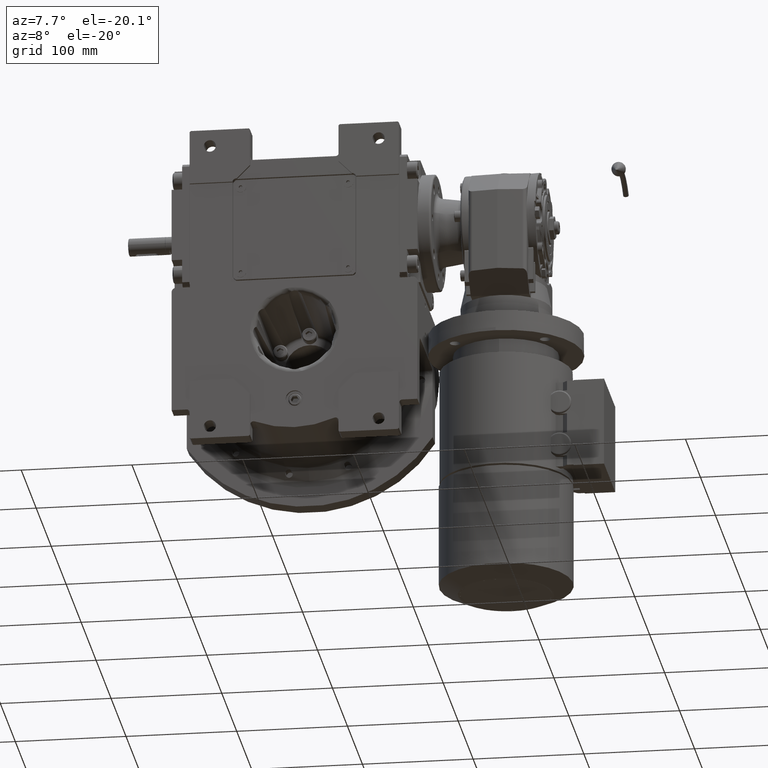
[diagram: clean part render]
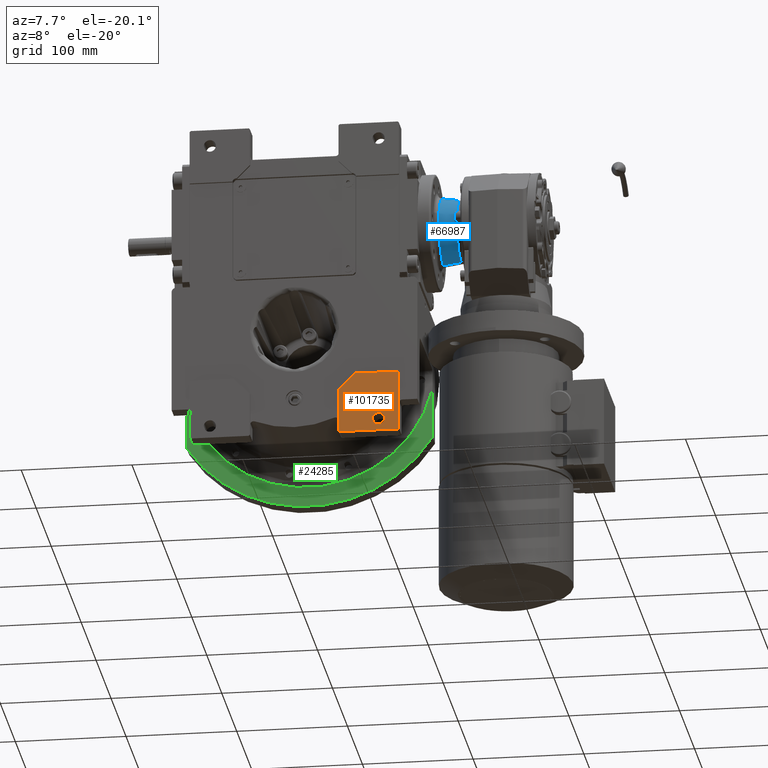
[diagram: same view with three faces highlighted in distinct colors, each labeled with its STEP entity id]
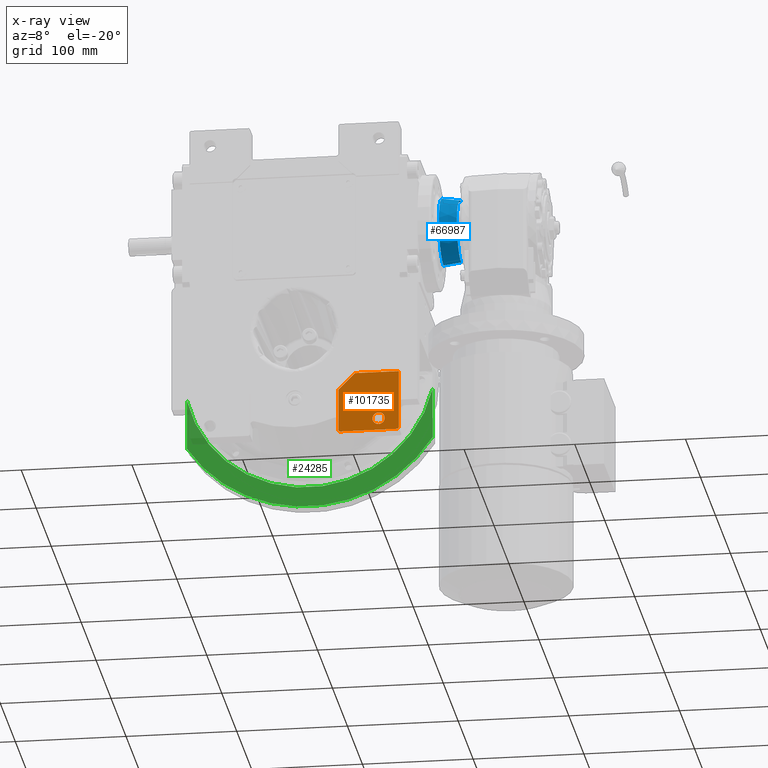
[diagram: x-ray of the same camera — body ghosted, the three highlighted faces saturated]
A machine part, auxiliary view with three faces highlighted in distinct colors.
The next image is the same camera in x-ray (body ghosted, the three faces saturated) — at least one of them is partly hidden behind the body in this view.
Their STEP definitions:

[orange] entity #101735 — the highlighted planar face has unit normal (0, -1, 0).
#803 = VECTOR ( 'NONE', #74310, 1000.000000000000000 ) ;
#1434 = DIRECTION ( 'NONE',  ( 0.7071067811865474617, 0.000000000000000000, -0.7071067811865474617 ) ) ;
#2591 = VECTOR ( 'NONE', #6963, 1000.000000000000114 ) ;
#2596 = CARTESIAN_POINT ( 'NONE',  ( 40.00000000000000000, -55.50000000000000000, -60.00000000000000000 ) ) ;
#3711 = EDGE_CURVE ( 'NONE', #21802, #85594, #95282, .T. ) ;
#5845 = CIRCLE ( 'NONE', #22397, 5.500000000000005329 ) ;
#6158 = VECTOR ( 'NONE', #40654, 1000.000000000000000 ) ;
#6963 = DIRECTION ( 'NONE',  ( 0.7071067811865474617, 0.000000000000000000, 0.7071067811865474617 ) ) ;
#8025 = CARTESIAN_POINT ( 'NONE',  ( 40.00000000000000000, -55.50000000000000000, -99.00000000000000000 ) ) ;
#8229 = CARTESIAN_POINT ( 'NONE',  ( 93.50000000000000000, -55.50000000000000000, -100.0000000000000000 ) ) ;
#9420 = DIRECTION ( 'NONE',  ( 0.000000000000000000, 0.000000000000000000, -1.000000000000000000 ) ) ;
#9503 = CARTESIAN_POINT ( 'NONE',  ( 55.00000000000000000, -55.50000000000000000, -45.00000000000000000 ) ) ;
#9619 = DIRECTION ( 'NONE',  ( -1.000000000000000000, 0.000000000000000000, 0.000000000000000000 ) ) ;
#10412 = VECTOR ( 'NONE', #75871, 1000.000000000000000 ) ;
#11625 = VERTEX_POINT ( 'NONE', #8229 ) ;
#12324 = VERTEX_POINT ( 'NONE', #36563 ) ;
#13561 = EDGE_CURVE ( 'NONE', #11625, #29840, #84812, .T. ) ;
#16043 = CARTESIAN_POINT ( 'NONE',  ( 70.70000000000000284, -55.50000000000000000, -89.00000000000000000 ) ) ;
#16067 = ORIENTED_EDGE ( 'NONE', *, *, #49621, .T. ) ;
#16834 = ORIENTED_EDGE ( 'NONE', *, *, #82723, .T. ) ;
#17418 = CARTESIAN_POINT ( 'NONE',  ( 94.50000000000000000, -55.50000000000000000, -99.00000000000000000 ) ) ;
#21549 = DIRECTION ( 'NONE',  ( 0.000000000000000000, 1.000000000000000000, 0.000000000000000000 ) ) ;
#21802 = VERTEX_POINT ( 'NONE', #9503 ) ;
#22397 = AXIS2_PLACEMENT_3D ( 'NONE', #48350, #55623, #72247 ) ;
#24570 = ORIENTED_EDGE ( 'NONE', *, *, #3711, .T. ) ;
#27296 = CARTESIAN_POINT ( 'NONE',  ( 76.20000000000000284, -55.50000000000000000, -89.00000000000000000 ) ) ;
#28891 = EDGE_CURVE ( 'NONE', #85594, #59592, #57119, .T. ) ;
#29840 = VERTEX_POINT ( 'NONE', #17418 ) ;
#33754 = CARTESIAN_POINT ( 'NONE',  ( 40.00000000000000000, -55.50000000000000000, -60.00000000000000000 ) ) ;
#34059 = CARTESIAN_POINT ( 'NONE',  ( 41.00000000000000000, -55.50000000000000000, -100.0000000000000000 ) ) ;
#36563 = CARTESIAN_POINT ( 'NONE',  ( 81.69999999999998863, -55.50000000000000000, -89.00000000000000000 ) ) ;
#38024 = VECTOR ( 'NONE', #1434, 1000.000000000000114 ) ;
#39496 = ORIENTED_EDGE ( 'NONE', *, *, #93076, .T. ) ;
#40600 = EDGE_CURVE ( 'NONE', #85008, #11625, #73794, .T. ) ;
#40654 = DIRECTION ( 'NONE',  ( 0.000000000000000000, 0.000000000000000000, 1.000000000000000000 ) ) ;
#42252 = FACE_BOUND ( 'NONE', #74588, .T. ) ;
#43259 = ORIENTED_EDGE ( 'NONE', *, *, #100037, .T. ) ;
#46985 = CARTESIAN_POINT ( 'NONE',  ( 94.50000000000000000, -55.50000000000000000, -45.00000000000000000 ) ) ;
#48350 = CARTESIAN_POINT ( 'NONE',  ( 76.20000000000000284, -55.50000000000000000, -89.00000000000000000 ) ) ;
#48371 = ORIENTED_EDGE ( 'NONE', *, *, #40600, .T. ) ;
#49621 = EDGE_CURVE ( 'NONE', #50586, #21802, #69113, .T. ) ;
#50586 = VERTEX_POINT ( 'NONE', #46985 ) ;
#52811 = ORIENTED_EDGE ( 'NONE', *, *, #28891, .T. ) ;
#52848 = VECTOR ( 'NONE', #9420, 1000.000000000000000 ) ;
#55041 = AXIS2_PLACEMENT_3D ( 'NONE', #27296, #21549, #76067 ) ;
#55623 = DIRECTION ( 'NONE',  ( 0.000000000000000000, 1.000000000000000000, 0.000000000000000000 ) ) ;
#55775 = DIRECTION ( 'NONE',  ( -0.7071067811865474617, 0.000000000000000000, -0.7071067811865474617 ) ) ;
#56917 = LINE ( 'NONE', #64205, #38024 ) ;
#57119 = LINE ( 'NONE', #33754, #52848 ) ;
#59592 = VERTEX_POINT ( 'NONE', #8025 ) ;
#61580 = AXIS2_PLACEMENT_3D ( 'NONE', #88463, #88983, #9619 ) ;
#62996 = LINE ( 'NONE', #78558, #6158 ) ;
#64205 = CARTESIAN_POINT ( 'NONE',  ( 40.00000000000000000, -55.50000000000000000, -99.00000000000000000 ) ) ;
#68012 = ORIENTED_EDGE ( 'NONE', *, *, #13561, .T. ) ;
#68698 = VECTOR ( 'NONE', #55775, 1000.000000000000114 ) ;
#69113 = LINE ( 'NONE', #99796, #10412 ) ;
#72247 = DIRECTION ( 'NONE',  ( 1.000000000000000000, 0.000000000000000000, 0.000000000000000000 ) ) ;
#73794 = LINE ( 'NONE', #91469, #803 ) ;
#73922 = FACE_OUTER_BOUND ( 'NONE', #77476, .T. ) ;
#74310 = DIRECTION ( 'NONE',  ( 1.000000000000000000, 0.000000000000000000, 0.000000000000000000 ) ) ;
#74588 = EDGE_LOOP ( 'NONE', ( #39496, #100883 ) ) ;
#75871 = DIRECTION ( 'NONE',  ( -1.000000000000000000, 0.000000000000000000, 0.000000000000000000 ) ) ;
#76067 = DIRECTION ( 'NONE',  ( -1.000000000000000000, 0.000000000000000000, 0.000000000000000000 ) ) ;
#77476 = EDGE_LOOP ( 'NONE', ( #48371, #68012, #16834, #16067, #24570, #52811, #43259 ) ) ;
#78558 = CARTESIAN_POINT ( 'NONE',  ( 94.50000000000000000, -55.50000000000000000, -99.00000000000000000 ) ) ;
#79660 = CARTESIAN_POINT ( 'NONE',  ( 55.00000000000000000, -55.50000000000000000, -45.00000000000000000 ) ) ;
#82723 = EDGE_CURVE ( 'NONE', #29840, #50586, #62996, .T. ) ;
#84812 = LINE ( 'NONE', #101436, #2591 ) ;
#85008 = VERTEX_POINT ( 'NONE', #34059 ) ;
#85594 = VERTEX_POINT ( 'NONE', #2596 ) ;
#88463 = CARTESIAN_POINT ( 'NONE',  ( 0.000000000000000000, -55.50000000000000000, 0.000000000000000000 ) ) ;
#88983 = DIRECTION ( 'NONE',  ( 0.000000000000000000, -1.000000000000000000, 0.000000000000000000 ) ) ;
#91245 = EDGE_CURVE ( 'NONE', #97221, #12324, #96528, .T. ) ;
#91469 = CARTESIAN_POINT ( 'NONE',  ( 41.00000000000000000, -55.50000000000000000, -100.0000000000000000 ) ) ;
#93076 = EDGE_CURVE ( 'NONE', #12324, #97221, #5845, .T. ) ;
#95282 = LINE ( 'NONE', #79660, #68698 ) ;
#96528 = CIRCLE ( 'NONE', #55041, 5.500000000000005329 ) ;
#96810 = PLANE ( 'NONE',  #61580 ) ;
#97221 = VERTEX_POINT ( 'NONE', #16043 ) ;
#99796 = CARTESIAN_POINT ( 'NONE',  ( 94.50000000000000000, -55.50000000000000000, -45.00000000000000000 ) ) ;
#100037 = EDGE_CURVE ( 'NONE', #59592, #85008, #56917, .T. ) ;
#100883 = ORIENTED_EDGE ( 'NONE', *, *, #91245, .T. ) ;
#101436 = CARTESIAN_POINT ( 'NONE',  ( 93.50000000000000000, -55.50000000000000000, -100.0000000000000000 ) ) ;
#101735 = ADVANCED_FACE ( 'NONE', ( #42252, #73922 ), #96810, .T. ) ;

[blue] entity #66987 — the highlighted conical surface has half-angle 7.991 deg.
#2579 = CARTESIAN_POINT ( 'NONE',  ( -55.69510696724011467, 1.381501957845646233E-13, 30.89565924732989899 ) ) ;
#4558 = EDGE_CURVE ( 'NONE', #18258, #45325, #18557, .T. ) ;
#6271 = LINE ( 'NONE', #69564, #97859 ) ;
#7572 = ORIENTED_EDGE ( 'NONE', *, *, #78519, .T. ) ;
#12034 = ORIENTED_EDGE ( 'NONE', *, *, #4558, .F. ) ;
#14831 = VECTOR ( 'NONE', #72557, 1000.000000000000227 ) ;
#18050 = CARTESIAN_POINT ( 'NONE',  ( -39.69510696729605570, 1.202122571432530671E-13, 28.64950540083309605 ) ) ;
#18258 = VERTEX_POINT ( 'NONE', #2579 ) ;
#18557 = CIRCLE ( 'NONE', #84860, 30.89565924733985369 ) ;
#22016 = DIRECTION ( 'NONE',  ( 0.000000000000000000, -4.407563852923771408E-13, -1.000000000000000000 ) ) ;
#22468 = CIRCLE ( 'NONE', #85463, 28.64950540114175226 ) ;
#22865 = DIRECTION ( 'NONE',  ( -1.000000000000000000, -3.328268406718944767E-12, -1.570129420200467938E-24 ) ) ;
#25534 = EDGE_CURVE ( 'NONE', #32009, #92432, #22468, .T. ) ;
#32009 = VERTEX_POINT ( 'NONE', #70680 ) ;
#38132 = DIRECTION ( 'NONE',  ( -1.000000000000000000, 9.302707618905044101E-32, 0.000000000000000000 ) ) ;
#38614 = CARTESIAN_POINT ( 'NONE',  ( -39.69510696725244969, 1.250022307885981294E-11, 0.000000000000000000 ) ) ;
#38671 = CONICAL_SURFACE ( 'NONE', #91771, 1.000000000000000000, 0.1394731433999997494 ) ;
#40897 = LINE ( 'NONE', #18050, #14831 ) ;
#45213 = EDGE_CURVE ( 'NONE', #92432, #18258, #40897, .T. ) ;
#45325 = VERTEX_POINT ( 'NONE', #64267 ) ;
#46163 = DIRECTION ( 'NONE',  ( -0.9902893779891469572, -6.003537973235458076E-16, -0.1390213934683015851 ) ) ;
#53210 = CARTESIAN_POINT ( 'NONE',  ( -39.69510696726336363, 1.281065002887275043E-13, 28.64950540106460508 ) ) ;
#61305 = CARTESIAN_POINT ( 'NONE',  ( -55.69510696723870069, 1.444178110432429316E-11, 0.000000000000000000 ) ) ;
#61491 = FACE_OUTER_BOUND ( 'NONE', #95773, .T. ) ;
#62329 = ORIENTED_EDGE ( 'NONE', *, *, #45213, .F. ) ;
#64267 = CARTESIAN_POINT ( 'NONE',  ( -55.69510696724011467, -1.400420092948012710E-13, -30.89565924732991320 ) ) ;
#66987 = ADVANCED_FACE ( 'NONE', ( #61491 ), #38671, .T. ) ;
#69283 = CARTESIAN_POINT ( 'NONE',  ( 157.2602739420584896, 0.000000000000000000, 0.000000000000000000 ) ) ;
#69564 = CARTESIAN_POINT ( 'NONE',  ( -39.69510696729605570, -1.237208096518820136E-13, -28.64950540083309605 ) ) ;
#70680 = CARTESIAN_POINT ( 'NONE',  ( -39.69510696726336363, -1.298607765430562654E-13, -28.64950540106460508 ) ) ;
#72557 = DIRECTION ( 'NONE',  ( -0.9902893779891469572, 5.833285868711483990E-16, 0.1390213934683015851 ) ) ;
#78519 = EDGE_CURVE ( 'NONE', #32009, #45325, #6271, .T. ) ;
#84860 = AXIS2_PLACEMENT_3D ( 'NONE', #61305, #22865, #92993 ) ;
#85463 = AXIS2_PLACEMENT_3D ( 'NONE', #38614, #85855, #22016 ) ;
#85855 = DIRECTION ( 'NONE',  ( 1.000000000000000000, 3.108089106552954522E-12, -1.342304769139626555E-24 ) ) ;
#91195 = ORIENTED_EDGE ( 'NONE', *, *, #25534, .F. ) ;
#91771 = AXIS2_PLACEMENT_3D ( 'NONE', #69283, #38132, #92167 ) ;
#92167 = DIRECTION ( 'NONE',  ( 0.000000000000000000, 4.440892098500739758E-15, 1.000000000000000000 ) ) ;
#92432 = VERTEX_POINT ( 'NONE', #53210 ) ;
#92993 = DIRECTION ( 'NONE',  ( 0.000000000000000000, -4.628738643764544070E-13, 1.000000000000000000 ) ) ;
#95773 = EDGE_LOOP ( 'NONE', ( #62329, #91195, #7572, #12034 ) ) ;
#97859 = VECTOR ( 'NONE', #46163, 1000.000000000000227 ) ;

[green] entity #24285 — the highlighted planar face has unit normal (0, -1, 0).
#4321 = DIRECTION ( 'NONE',  ( 0.000000000000000000, -1.000000000000000000, 0.000000000000000000 ) ) ;
#5334 = FACE_OUTER_BOUND ( 'NONE', #63980, .T. ) ;
#10829 = ORIENTED_EDGE ( 'NONE', *, *, #29917, .T. ) ;
#11609 = AXIS2_PLACEMENT_3D ( 'NONE', #100309, #4321, #69130 ) ;
#12591 = DIRECTION ( 'NONE',  ( 0.000000000000000000, -1.000000000000000000, 0.000000000000000000 ) ) ;
#12836 = EDGE_CURVE ( 'NONE', #59836, #64024, #62224, .T. ) ;
#23653 = CARTESIAN_POINT ( 'NONE',  ( -111.0000000000000000, 47.50000000000000000, -71.43528539874399996 ) ) ;
#24285 = ADVANCED_FACE ( 'NONE', ( #5334 ), #59818, .T. ) ;
#24945 = DIRECTION ( 'NONE',  ( 0.8409090909090902732, 0.000000000000000000, -0.5411764045359401809 ) ) ;
#25213 = LINE ( 'NONE', #26229, #85895 ) ;
#26229 = CARTESIAN_POINT ( 'NONE',  ( 111.0000000000000000, 47.50000000000000000, -71.43528539874399996 ) ) ;
#26436 = AXIS2_PLACEMENT_3D ( 'NONE', #45214, #12591, #93020 ) ;
#29917 = EDGE_CURVE ( 'NONE', #59836, #75219, #25213, .T. ) ;
#33244 = DIRECTION ( 'NONE',  ( 0.000000000000000000, 1.000000000000000000, 0.000000000000000000 ) ) ;
#41659 = CIRCLE ( 'NONE', #11609, 113.8793756871230158 ) ;
#43134 = VERTEX_POINT ( 'NONE', #66152 ) ;
#45214 = CARTESIAN_POINT ( 'NONE',  ( 0.000000000000000000, 47.50000000000000000, 0.000000000000000000 ) ) ;
#46987 = LINE ( 'NONE', #23653, #88182 ) ;
#55395 = ORIENTED_EDGE ( 'NONE', *, *, #12836, .F. ) ;
#59818 = PLANE ( 'NONE',  #26436 ) ;
#59836 = VERTEX_POINT ( 'NONE', #90499 ) ;
#60085 = CARTESIAN_POINT ( 'NONE',  ( 111.0000000000000000, 47.50000000000000000, -25.44626115736659955 ) ) ;
#62224 = CIRCLE ( 'NONE', #93625, 131.9999999999999716 ) ;
#63980 = EDGE_LOOP ( 'NONE', ( #73379, #55395, #10829, #78295 ) ) ;
#64024 = VERTEX_POINT ( 'NONE', #93768 ) ;
#64038 = EDGE_CURVE ( 'NONE', #64024, #43134, #46987, .T. ) ;
#66152 = CARTESIAN_POINT ( 'NONE',  ( -111.0000000000000000, 47.50000000000000000, -25.44626115736729588 ) ) ;
#69130 = DIRECTION ( 'NONE',  ( -0.9747155648707268583, 0.000000000000000000, -0.2234492506112734644 ) ) ;
#69366 = DIRECTION ( 'NONE',  ( 0.000000000000000000, 0.000000000000000000, 1.000000000000000000 ) ) ;
#73379 = ORIENTED_EDGE ( 'NONE', *, *, #64038, .F. ) ;
#75219 = VERTEX_POINT ( 'NONE', #60085 ) ;
#78295 = ORIENTED_EDGE ( 'NONE', *, *, #88852, .F. ) ;
#82002 = CARTESIAN_POINT ( 'NONE',  ( 0.000000000000000000, 47.50000000000000000, 4.263256414560599853E-14 ) ) ;
#85895 = VECTOR ( 'NONE', #87503, 1000.000000000000000 ) ;
#87503 = DIRECTION ( 'NONE',  ( 6.180107079730629528E-16, 0.000000000000000000, 1.000000000000000000 ) ) ;
#88182 = VECTOR ( 'NONE', #69366, 1000.000000000000000 ) ;
#88852 = EDGE_CURVE ( 'NONE', #43134, #75219, #41659, .T. ) ;
#90499 = CARTESIAN_POINT ( 'NONE',  ( 111.0000000000000000, 47.50000000000000000, -71.43528539874399996 ) ) ;
#93020 = DIRECTION ( 'NONE',  ( 0.000000000000000000, 0.000000000000000000, 1.000000000000000000 ) ) ;
#93625 = AXIS2_PLACEMENT_3D ( 'NONE', #82002, #33244, #24945 ) ;
#93768 = CARTESIAN_POINT ( 'NONE',  ( -111.0000000000000000, 47.50000000000000000, -71.43528539874399996 ) ) ;
#100309 = CARTESIAN_POINT ( 'NONE',  ( -9.947598300641398816E-14, 47.50000000000000000, -5.684341886080798963E-14 ) ) ;